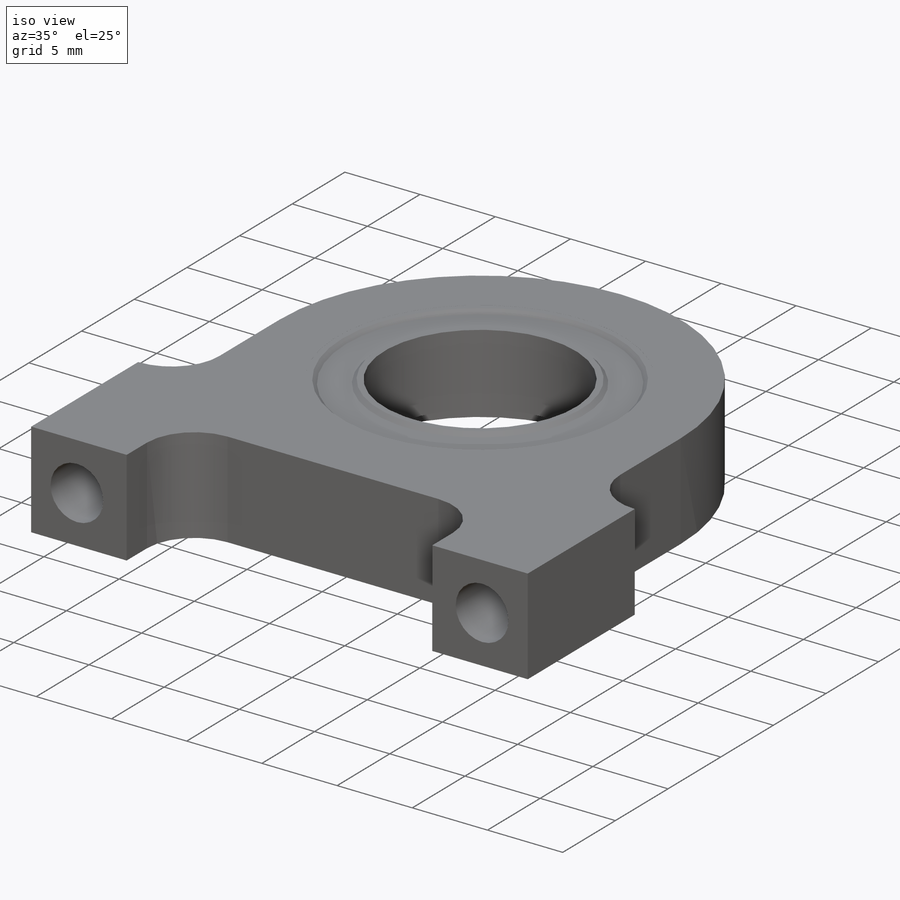
[diagram: iso view]
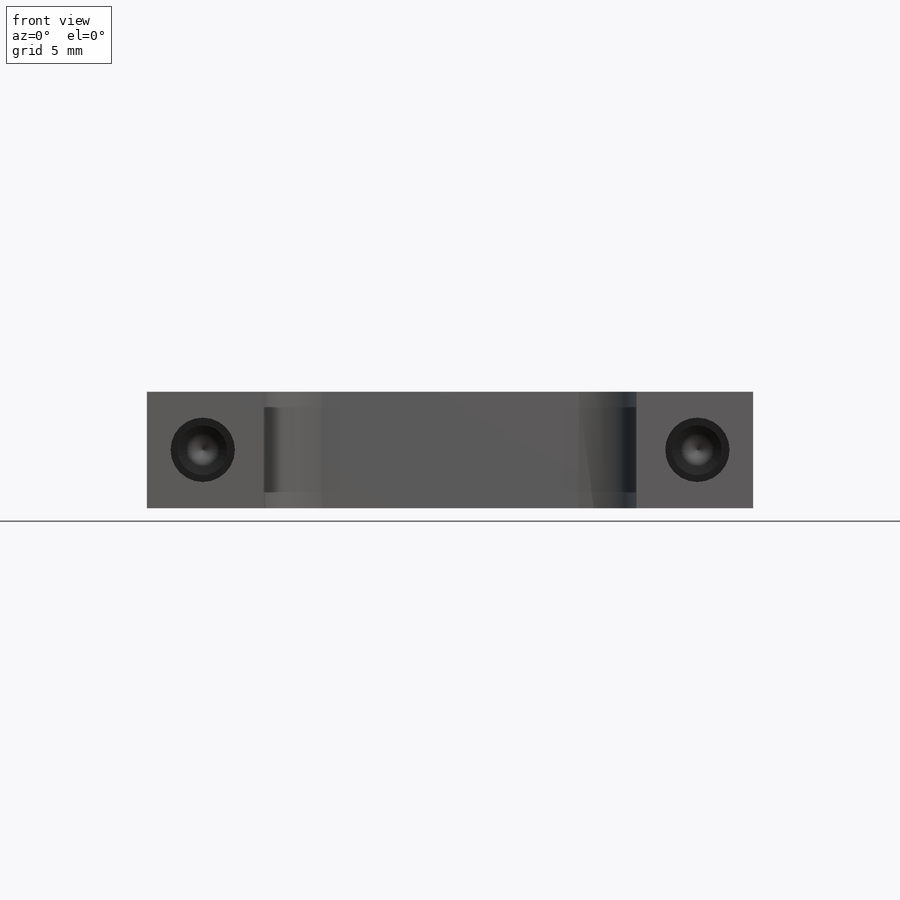
[diagram: front view]
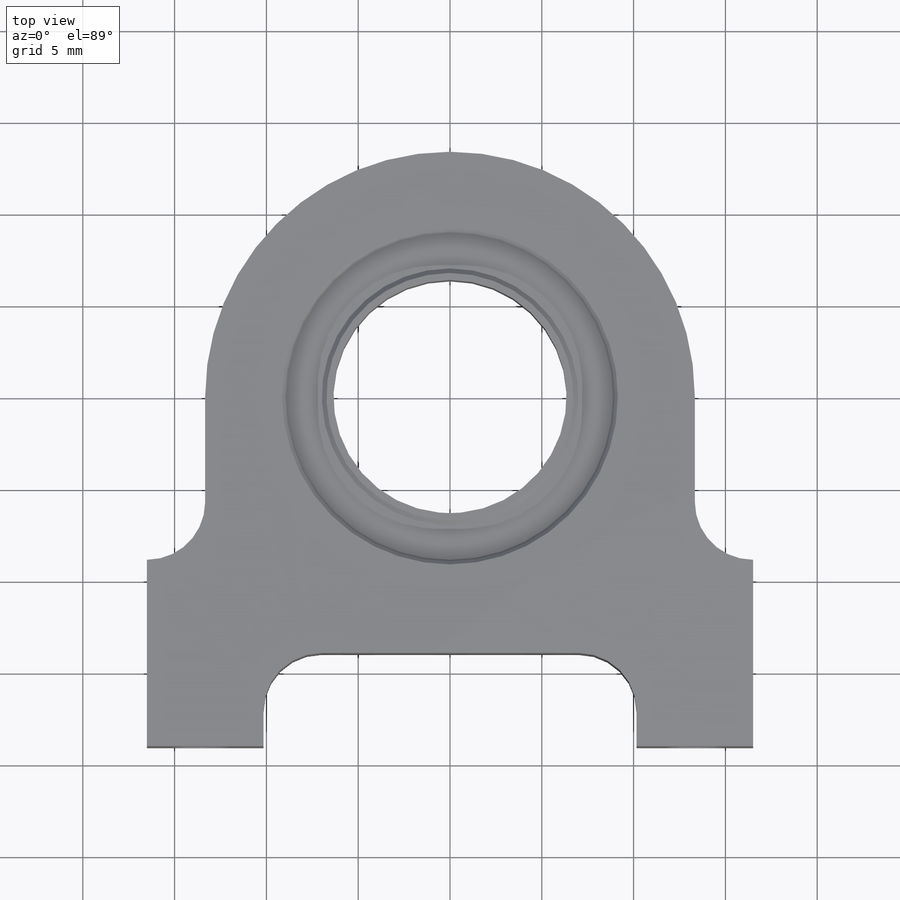
[diagram: top view]
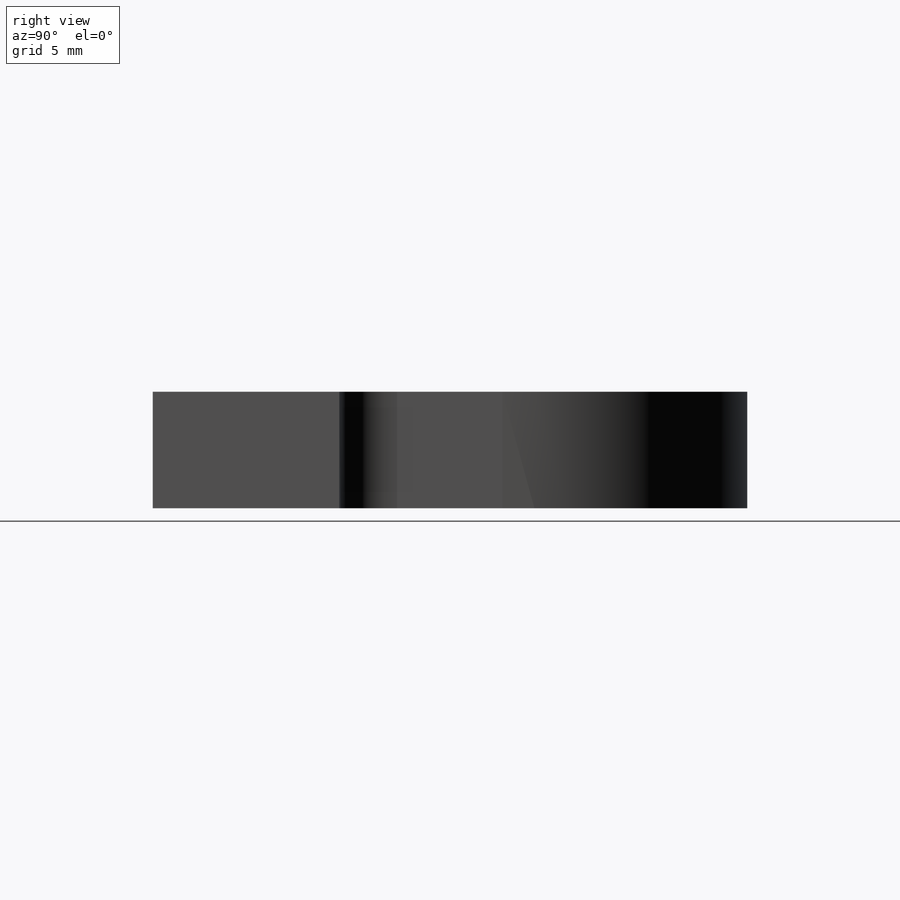
[diagram: right view]
SOLIDWORKS PART (.sldprt)
format: sldprt  version: not decoded by parser v0  size: 333,312 bytes
history: native  units: mm
features: sketch x7, extrude x4, plane x2, chamfer x2, material x1, cut_extrude x1, hole x1 (+13 scaffold rows collapsed)
feature tree (31):
  scaffold x13  (default folders/planes/origin — collapsed)
  material  "6061 Alloy"
  sketch  "Sketch1"  dims[D1=26.67mm D6=3.1496mm D9=3.1496mm D10=17.4625mm D2=32.385mm D3=33.02mm D4=16.51mm D5=10.16mm D7=5.08mm D8=20.32mm]
  extrude  "Boss-Extrude1"  Depth=6.35mm
  sketch  "Sketch2"  dims[D1=19.05mm]
  cut_extrude  "Cut-Extrude1"  Depth=4.7625mm
  plane  "Plane1"
  sketch  "Sketch3"  dims[c1.D1=19.05mm c1.D2=16.51mm c2.D1=0.635mm]
  extrude  "Boss-Extrude2"  Depth=4.75996mm
  chamfer  "Chamfer1"  Distance=0.254mm Angle=45deg
  sketch  "Sketch5"  dims[D1=12.7mm D2=0.635mm]
  extrude  "Boss-Extrude3"  Depth=4.75996mm
  chamfer  "Chamfer2"  Distance=0.254mm Angle=45deg
  plane  "Plane2"
  sketch  "Sketch6"
  extrude  "Boss-Extrude4"  Depth=4.25196mm
  hole  "#6-32 Tapped Hole1"  Diameter=2.7051mm Depth=9.398mm
  sketch  "Sketch9"  dims[D1=3.175mm D2=19.05mm D3=19.05mm]
  sketch  "Sketch8"  dims[hole-wizard template sketch: 31 standard entries collapsed; hole parameters kept: c8.Thread Depth=7.0104mm c8.D5=~14.816244mm c8.Drill Angle=118.0deg]
decode coverage: 14 of 15 modeling features carry decoded parameters
note: ~ marks probable driven/reference dimensions
note: suppression state not decoded; provenance and decode notes live in map.json
